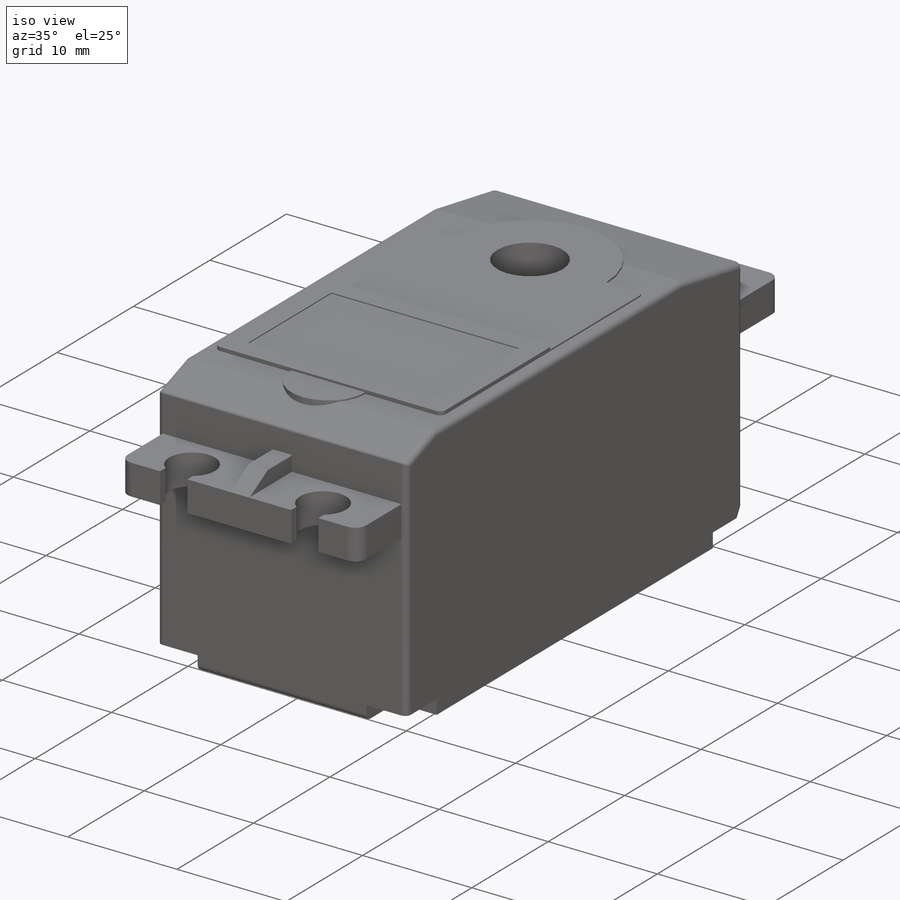
[diagram: iso view]
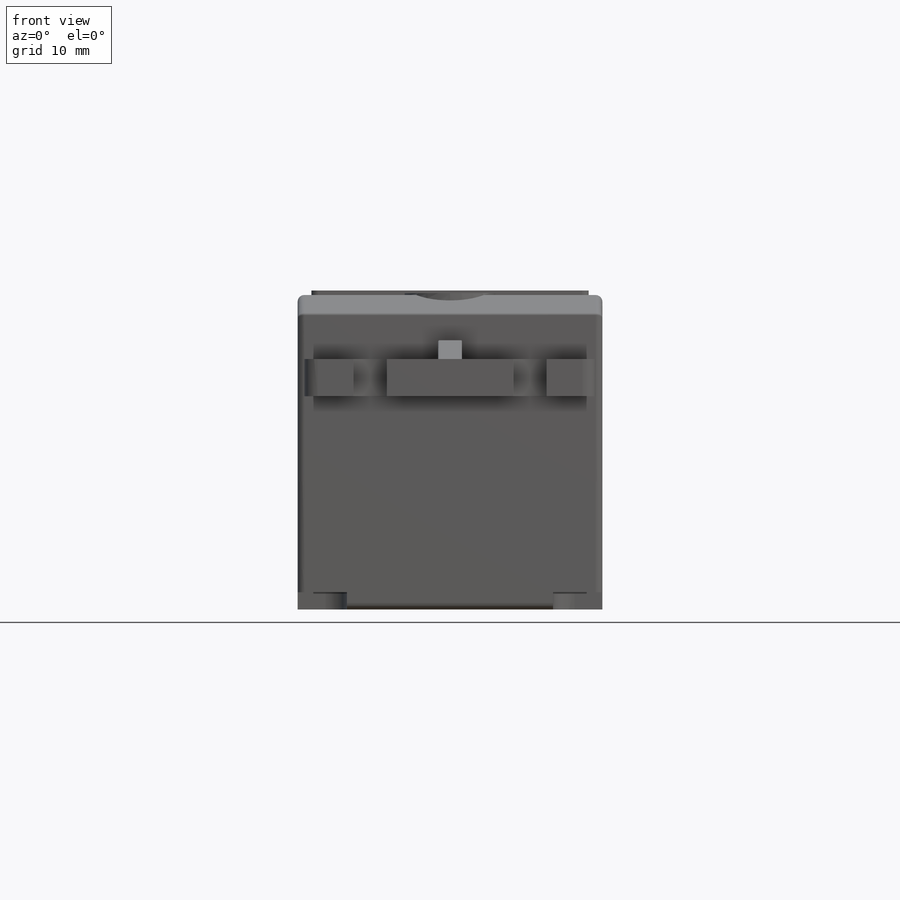
[diagram: front view]
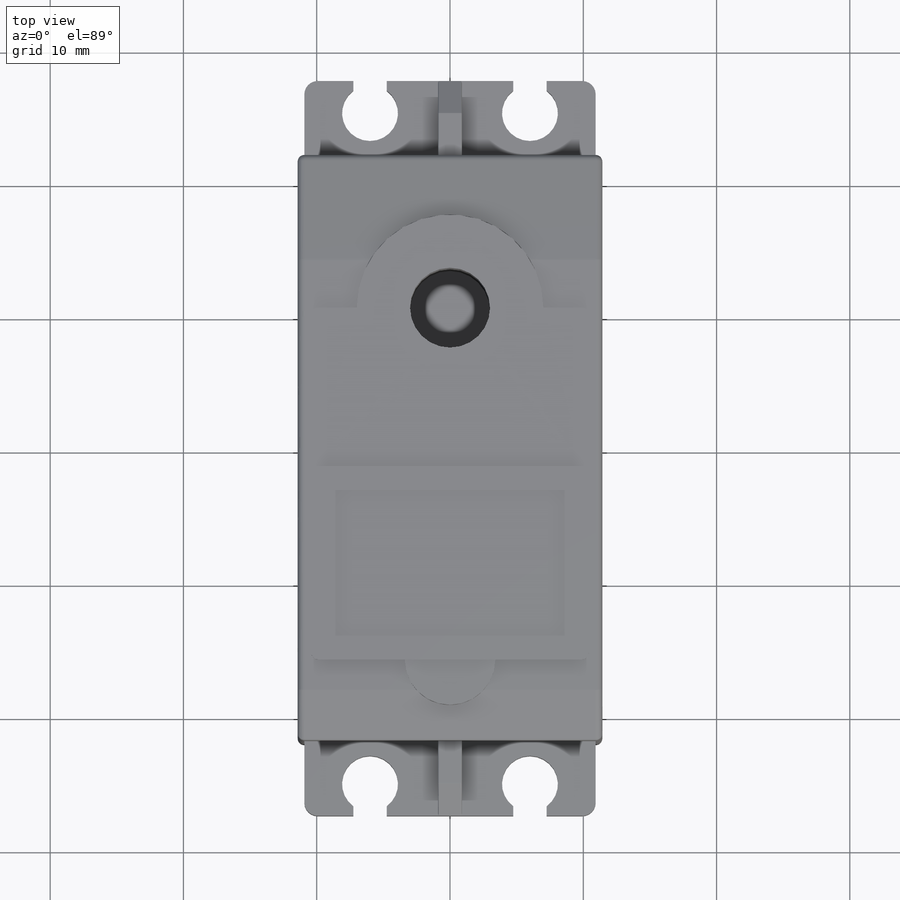
[diagram: top view]
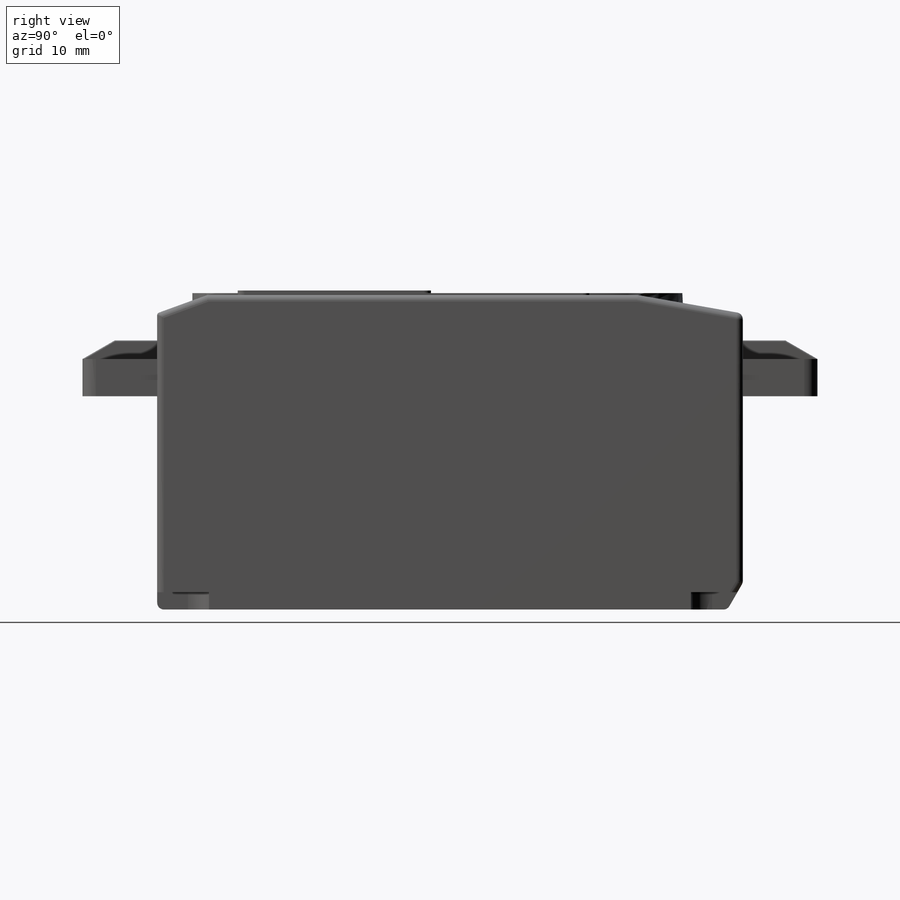
[diagram: right view]
SOLIDWORKS PART (.sldprt)
format: sldprt  version: not decoded by parser v0  size: 774,656 bytes
history: native  units: mm
features: sketch x18, fillet x10, extrude x7, cut_extrude x7, mirror x4, thread x4, hole x2, material x1, chamfer x1, plane x1 (+19 scaffold rows collapsed; 6 parser-record rows omitted)
feature tree (80):
  scaffold x19  (default folders/planes/origin — collapsed)
  material  "Polyethylene Cross-Linked"
  parser-record x6  (decoder bookkeeping rows leaked as tree rows — omitted from the tree; the rows remain in map.json)
  sketch  "Sketch1"  dims[D1=43.942mm D2=22.86mm]
  extrude  "Boss-Extrude1"  Depth=6.6mm
  sketch  "Sketch2"  dims[D1=0.0mm]
  extrude  "Boss-Extrude2"  Depth=3mm
  chamfer  "Chamfer2"  Distance=2mm Angle=30deg
  fillet  "Fillet7"  Radius=0.5mm
  sketch  "Sketch3"  dims[D1=3.7mm D2=3.9mm]
  cut_extrude  "Cut-Extrude1"  Depth=1.3mm
  mirror  "Mirror4"
  mirror  "Mirror5"
  fillet  "Fillet1"  Radius=1.6mm
  hole  "Hole1"  Diameter=2.1mm Depth=1.699mm
  sketch  "Sketch5"
  sketch  "Sketch4"  dims[hole-wizard template sketch: 41 standard entries collapsed; hole parameters kept: c12.Thru Hole Dia.=2.1mm c12.Thru Hole Depth=1.699mm c12.C'Bore Dia.=3.2mm c12.C'Bore Depth=1.4mm]
  hole  "M2x0.4 Tapped Hole1"  Diameter=1.6mm Depth=15.2mm
  sketch  "Sketch8"
  sketch  "Sketch7"  dims[hole-wizard template sketch: 47 standard entries collapsed; hole parameters kept: c15.Tap Drill Depth=15.2mm c15.D3=~14.816244mm c15.Drill Angle=118.0deg]
  thread  "Hole Thread1"  Diameter=14mm  [1 undecoded]
  thread  "Hole Thread2"  Diameter=14mm  [1 undecoded]
  thread  "Hole Thread3"  Diameter=14mm  [1 undecoded]
  thread  "Hole Thread4"  Diameter=14mm  [1 undecoded]
  sketch  "Sketch6"  dims[D1=0.0mm]
  extrude  "Boss-Extrude3"  Depth=14mm
  sketch  "Sketch10"  dims[c1.D1=4.0mm c1.D2=~3.762944mm c2.D2=20.0deg c2.D3=8.0mm c2.D4=8.0mm c3.D4=10.0deg c3.D5=~18.24123mm c3.D6=22.0mm c3.D7=~1.389185mm]
  cut_extrude  "Cut-Extrude2"  Depth=14mm
  sketch  "Sketch11"  dims[D2=6.0mm D1=11.5mm]
  cut_extrude  "Cut-Extrude3"  [1 undecoded]
  fillet  "Fillet9"  Radius=0.2mm
  fillet  "Fillet10"  Radius=0.5mm
  sketch  "Sketch12"  dims[c1.D1=16.0mm c1.D2=2.8mm c2.D1=16.0mm]
  extrude  "Boss-Extrude4"  Depth=5.6mm
  sketch  "Sketch13"  dims[D1=4.2mm D2=3.2mm D3=6.0mm D4=2.5mm]
  cut_extrude  "Cut-Extrude4"  [1 undecoded]
  fillet  "Fillet11"  Radius=1mm
  mirror  "Mirror6"
  sketch  "Sketch14"  dims[D1=1.8mm]
  extrude  "Boss-Extrude5"  Depth=1.4mm
  sketch  "Sketch15"  dims[c1.D1=2.8mm c1.D2=~2.273903mm c2.D2=30.0deg]
  cut_extrude  "Cut-Extrude5"  Depth=1.4mm
  fillet  "Fillet13"  Radius=0.1mm
  sketch  "Sketch20"  dims[D1=3.3mm D2=~2.870288mm]
  cut_extrude  "Cut-Extrude7"  Depth=1.7mm
  mirror  "Mirror7"
  fillet  "Fillet14"  Radius=0.5mm
  fillet  "Fillet15"  Radius=0.5mm
  fillet  "Fillet16"  Radius=0.5mm
  plane  "Plane1"  Offset=0.14mm
  sketch  "Sketch16"  dims[c1.D1=14.0mm c1.D3=6.8mm c1.D2=20.8mm c2.D3=~2.839525mm c2.D4=26.4mm c2.D5=~3.411164mm]
  extrude  "Boss-Extrude6"  Depth=0.8mm
  fillet  "Fillet17"  Radius=0.5mm
  sketch  "Sketch17"  dims[D3=0.5mm D2=14.0mm D1=0.0mm]
  extrude  "Boss-Extrude7"  Depth=0.2mm
  sketch  "Sketch18"  dims[D1=1.8mm D2=1.8mm]
  cut_extrude  "Cut-Extrude6"  Depth=0.1mm
decode coverage: 45 of 53 modeling features carry decoded parameters
note: ~ marks probable driven/reference dimensions
note: 6 parameter values undecoded
note: suppression state not decoded; provenance and decode notes live in map.json
